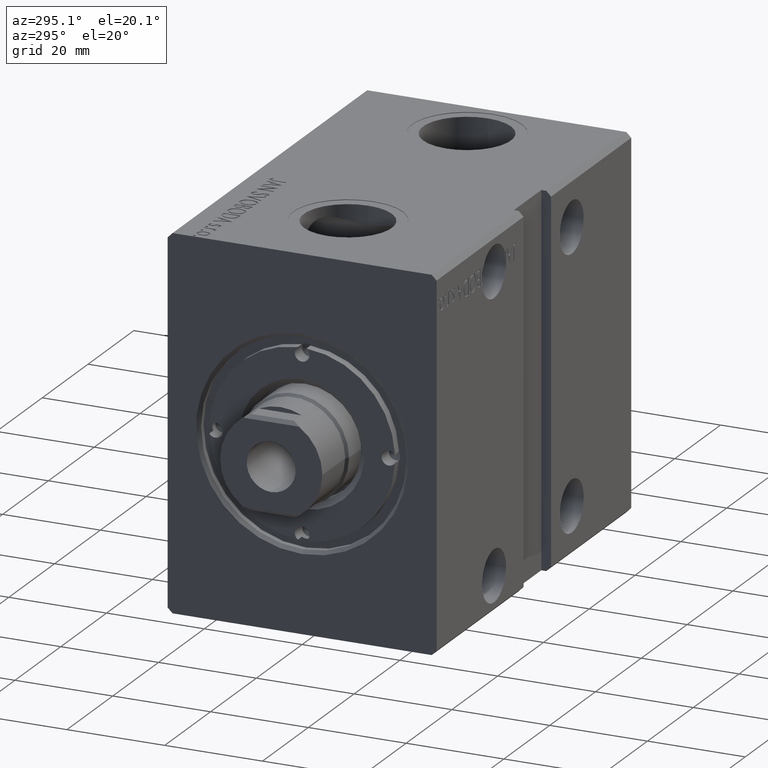
[diagram: clean part render]
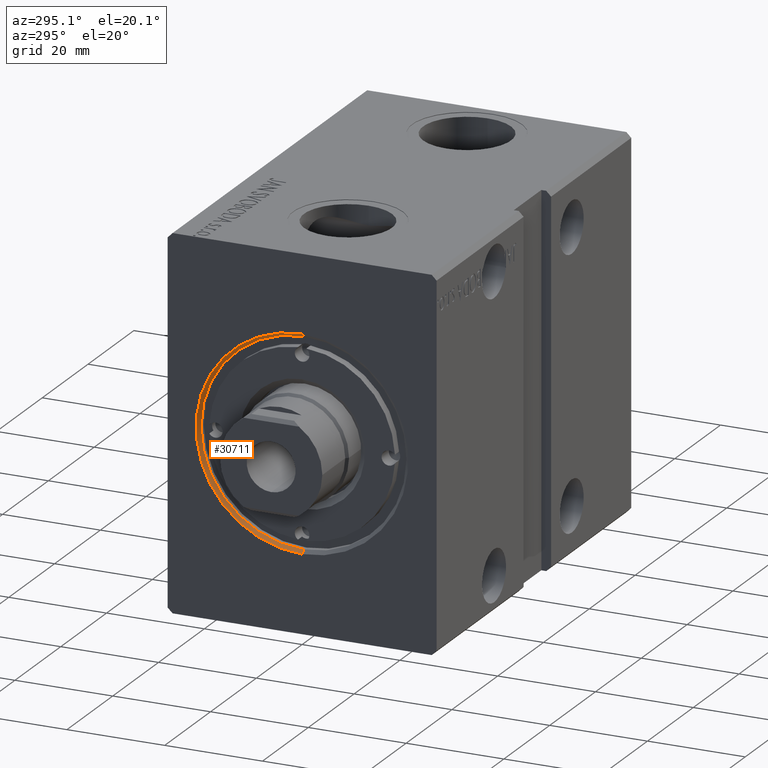
[diagram: same view with one face highlighted and labeled with its STEP entity id]
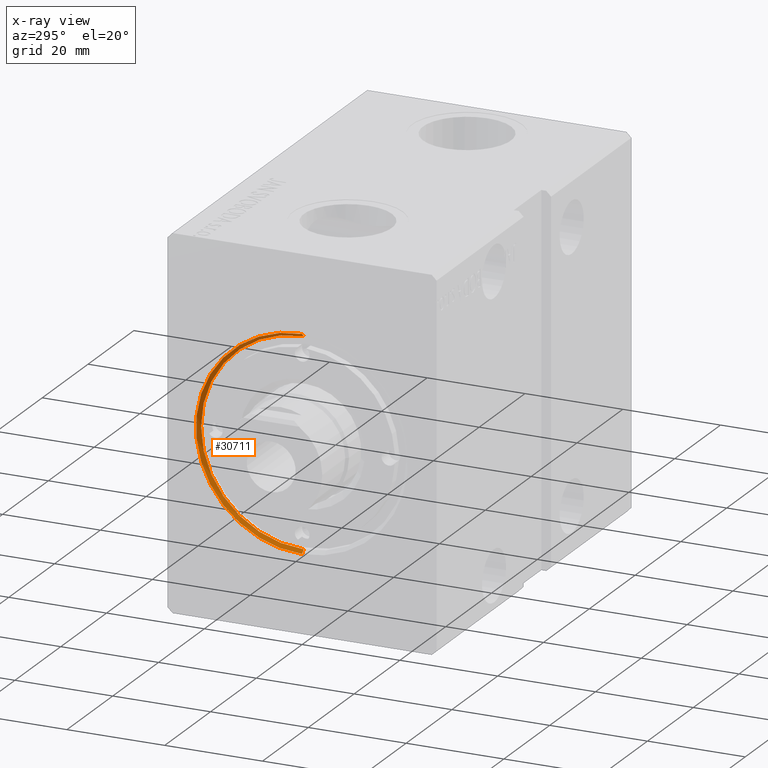
[diagram: x-ray of the same camera — body ghosted, the highlighted face saturated]
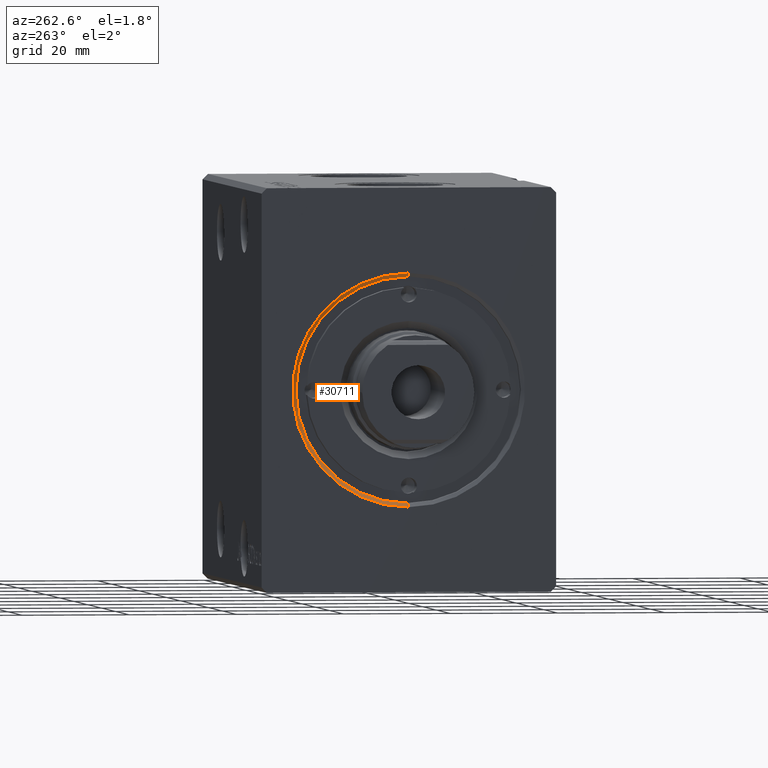
[diagram: same view with one face highlighted and labeled with its STEP entity id]
A machine part, auxiliary view. The second image highlights one B-rep face of the part: STEP entity #30711.
The next image is the same camera in x-ray: the body ghosted, the highlighted face saturated — about 0% of this face is hidden behind the body in this view.
A second angle (auxiliary view) of the same face is appended — the face is thin or edge-on in the first view.
In plain terms, the highlighted conical surface has half-angle 45 deg.
Its self-contained STEP definition (entity closure, byte-faithful):
#1180 = AXIS2_PLACEMENT_3D ( 'NONE', #9018, #18632, #22116 ) ;
#7521 = CARTESIAN_POINT ( 'NONE',  ( 0.6999999999999888534, 2.571758278209441661E-15, -21.00000000000000000 ) ) ;
#7594 = CARTESIAN_POINT ( 'NONE',  ( 0.000000000000000000, 0.000000000000000000, 0.000000000000000000 ) ) ;
#8304 = CIRCLE ( 'NONE', #12870, 21.00000000000000000 ) ;
#8356 = EDGE_CURVE ( 'NONE', #28824, #11656, #9493, .T. ) ;
#9018 = CARTESIAN_POINT ( 'NONE',  ( 0.6999999999999888534, 0.000000000000000000, 0.000000000000000000 ) ) ;
#9493 = LINE ( 'NONE', #22380, #29639 ) ;
#9637 = CARTESIAN_POINT ( 'NONE',  ( 0.6999999999999888534, 0.000000000000000000, 0.000000000000000000 ) ) ;
#11656 = VERTEX_POINT ( 'NONE', #32293 ) ;
#11722 = EDGE_CURVE ( 'NONE', #21699, #29873, #29620, .T. ) ;
#12870 = AXIS2_PLACEMENT_3D ( 'NONE', #9637, #22117, #34585 ) ;
#14374 = EDGE_CURVE ( 'NONE', #29873, #11656, #14553, .T. ) ;
#14553 = CIRCLE ( 'NONE', #34161, 21.69999999999999574 ) ;
#14659 = ORIENTED_EDGE ( 'NONE', *, *, #8356, .T. ) ;
#17414 = CARTESIAN_POINT ( 'NONE',  ( 0.000000000000000000, 2.657483554149755949E-15, -21.69999999999999574 ) ) ;
#18197 = ORIENTED_EDGE ( 'NONE', *, *, #29258, .F. ) ;
#18632 = DIRECTION ( 'NONE',  ( -1.000000000000000000, 0.000000000000000000, 0.000000000000000000 ) ) ;
#21348 = CARTESIAN_POINT ( 'NONE',  ( 0.6999999999999888534, 0.000000000000000000, 21.00000000000000000 ) ) ;
#21699 = VERTEX_POINT ( 'NONE', #25293 ) ;
#22116 = DIRECTION ( 'NONE',  ( 0.000000000000000000, 0.000000000000000000, 1.000000000000000000 ) ) ;
#22117 = DIRECTION ( 'NONE',  ( -1.000000000000000000, 0.000000000000000000, 0.000000000000000000 ) ) ;
#22380 = CARTESIAN_POINT ( 'NONE',  ( 0.6999999999999888534, 0.000000000000000000, 21.00000000000000000 ) ) ;
#23403 = ORIENTED_EDGE ( 'NONE', *, *, #11722, .F. ) ;
#23997 = EDGE_LOOP ( 'NONE', ( #23403, #18197, #14659, #30994 ) ) ;
#25293 = CARTESIAN_POINT ( 'NONE',  ( 0.6999999999999888534, 2.571758278209441661E-15, -21.00000000000000000 ) ) ;
#25450 = DIRECTION ( 'NONE',  ( -0.7071067811865441310, 0.000000000000000000, 0.7071067811865510144 ) ) ;
#25471 = VECTOR ( 'NONE', #32275, 999.9999999999998863 ) ;
#25629 = DIRECTION ( 'NONE',  ( 0.000000000000000000, 0.000000000000000000, -1.000000000000000000 ) ) ;
#28824 = VERTEX_POINT ( 'NONE', #21348 ) ;
#29258 = EDGE_CURVE ( 'NONE', #28824, #21699, #8304, .T. ) ;
#29620 = LINE ( 'NONE', #7521, #25471 ) ;
#29639 = VECTOR ( 'NONE', #25450, 999.9999999999998863 ) ;
#29873 = VERTEX_POINT ( 'NONE', #17414 ) ;
#29896 = CONICAL_SURFACE ( 'NONE', #1180, 21.00000000000000000, 0.7853981633974532750 ) ;
#30711 = ADVANCED_FACE ( 'NONE', ( #34171 ), #29896, .F. ) ;
#30994 = ORIENTED_EDGE ( 'NONE', *, *, #14374, .F. ) ;
#32144 = DIRECTION ( 'NONE',  ( 1.000000000000000000, 0.000000000000000000, 0.000000000000000000 ) ) ;
#32275 = DIRECTION ( 'NONE',  ( -0.7071067811865441310, 8.659560562354975999E-17, -0.7071067811865510144 ) ) ;
#32293 = CARTESIAN_POINT ( 'NONE',  ( 0.000000000000000000, 0.000000000000000000, 21.69999999999999574 ) ) ;
#34161 = AXIS2_PLACEMENT_3D ( 'NONE', #7594, #32144, #25629 ) ;
#34171 = FACE_OUTER_BOUND ( 'NONE', #23997, .T. ) ;
#34585 = DIRECTION ( 'NONE',  ( 0.000000000000000000, 0.000000000000000000, -1.000000000000000000 ) ) ;